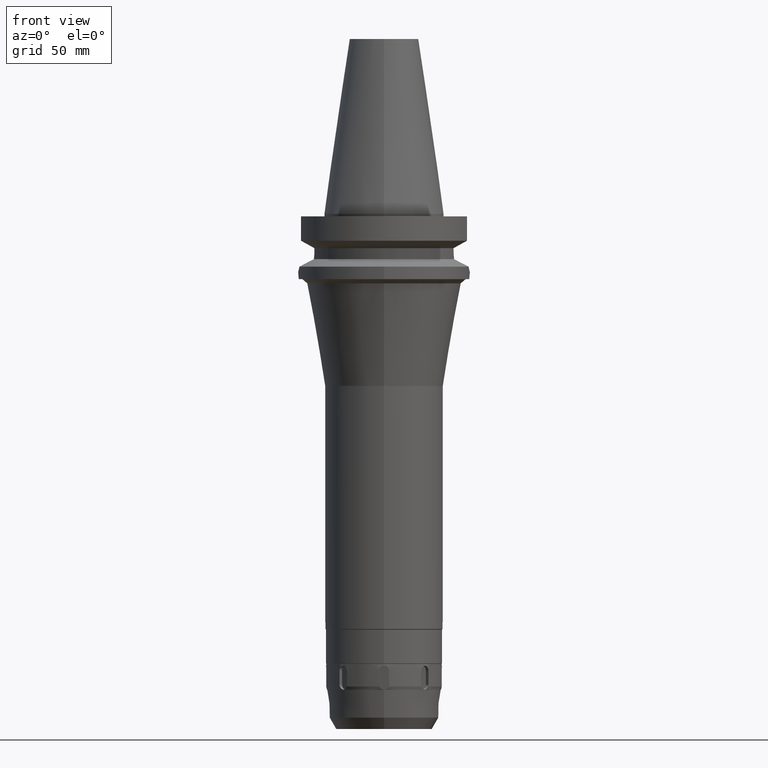
[diagram: clean part render]
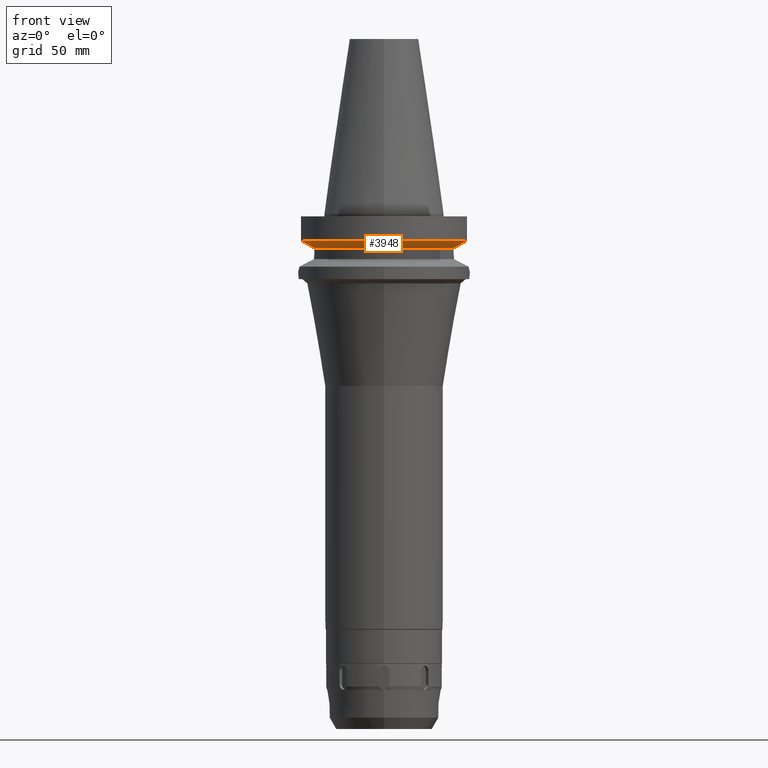
[diagram: same view with one face highlighted and labeled with its STEP entity id]
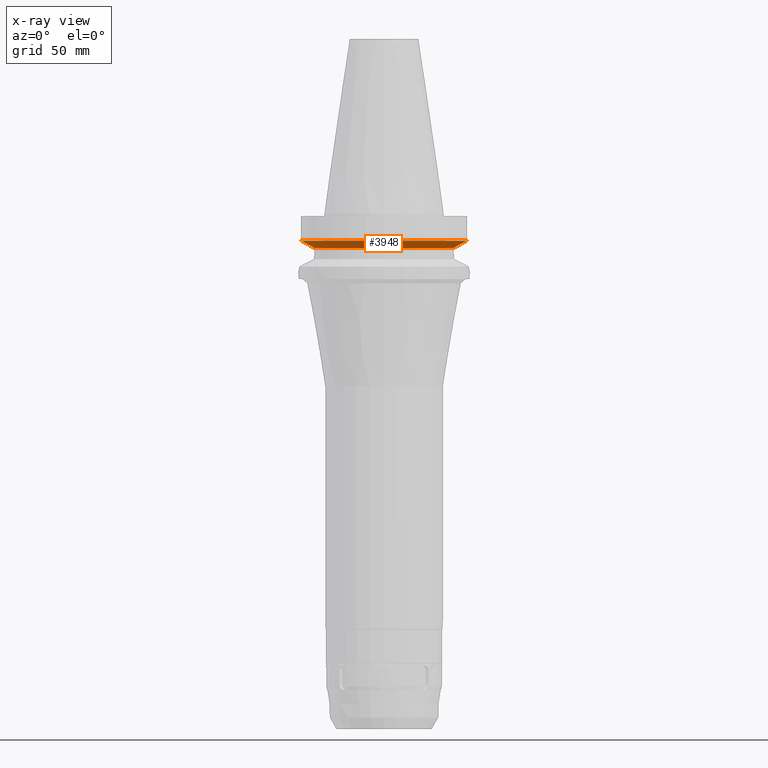
[diagram: x-ray of the same camera — body ghosted, the highlighted face saturated]
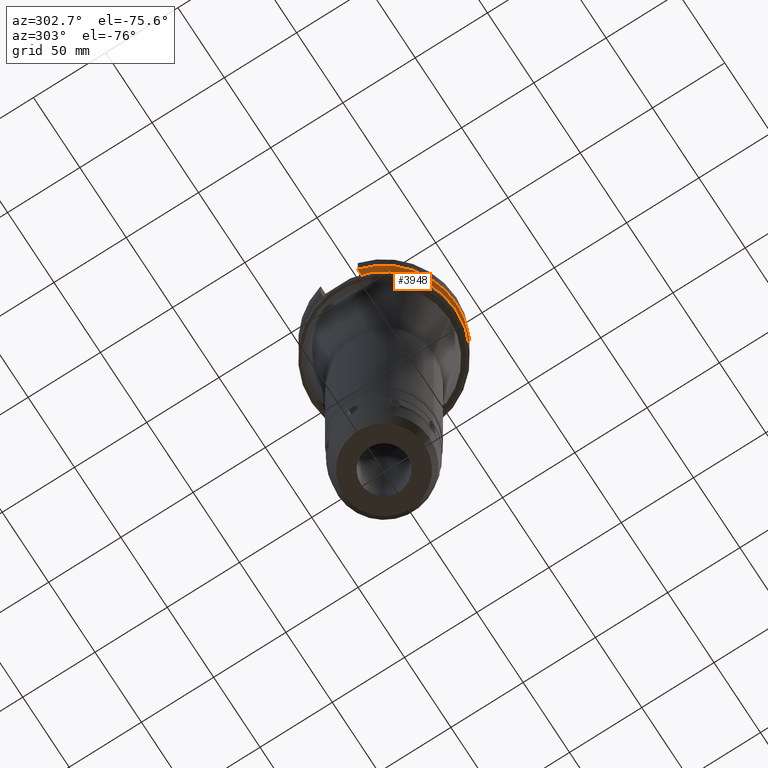
[diagram: same view with one face highlighted and labeled with its STEP entity id]
A machine part, front view. The second image highlights one B-rep face of the part: STEP entity #3948.
The next image is the same camera in x-ray: the body ghosted, the highlighted face saturated — about 0% of this face is hidden behind the body in this view.
A second angle (auxiliary view) of the same face is appended — the face is thin or edge-on in the first view.
In plain terms, the highlighted conical surface has half-angle 60 deg.
Its self-contained STEP definition (entity closure, byte-faithful):
#1785=CARTESIAN_POINT('',(-4.832056912814E1,-1.285000385728E1,
-1.566265768251E1));
#1786=CARTESIAN_POINT('',(-4.745408729221E1,-1.285000385728E1,
-1.614611802317E1));
#1787=CARTESIAN_POINT('',(-4.572065044709E1,-1.284999774293E1,
-1.711204883166E1));
#1788=CARTESIAN_POINT('',(-4.311729623692E1,-1.285000211383E1,
-1.855526471611E1));
#1789=CARTESIAN_POINT('',(-4.138011668042E1,-1.284999657245E1,
-1.951445436177E1));
#1790=CARTESIAN_POINT('',(-4.051083297203E1,-1.284999657245E1,
-1.999284555870E1));
#1829=CARTESIAN_POINT('',(0.E0,1.006319759054E-14,-1.566269223573E1));
#1830=DIRECTION('',(0.E0,0.E0,1.E0));
#1831=DIRECTION('',(-9.664114030784E-1,-2.57E-1,0.E0));
#1832=AXIS2_PLACEMENT_3D('',#1829,#1830,#1831);
#1837=CARTESIAN_POINT('',(0.E0,1.006319759054E-14,-1.566269223573E1));
#1838=DIRECTION('',(0.E0,0.E0,1.E0));
#1839=DIRECTION('',(0.E0,-1.E0,0.E0));
#1840=AXIS2_PLACEMENT_3D('',#1837,#1838,#1839);
#1845=CARTESIAN_POINT('',(0.E0,1.006319759054E-14,-1.999281925465E1));
#1846=DIRECTION('',(0.E0,0.E0,-1.E0));
#1847=DIRECTION('',(9.531960443487E-1,-3.023529411765E-1,0.E0));
#1848=AXIS2_PLACEMENT_3D('',#1845,#1846,#1847);
#1853=CARTESIAN_POINT('',(0.E0,1.006319759054E-14,-1.999281925465E1));
#1854=DIRECTION('',(0.E0,0.E0,-1.E0));
#1855=DIRECTION('',(0.E0,-1.E0,0.E0));
#1856=AXIS2_PLACEMENT_3D('',#1853,#1854,#1855);
#1875=CARTESIAN_POINT('',(4.051083297142E1,-1.284999657438E1,
-1.999284554394E1));
#1876=CARTESIAN_POINT('',(4.138011667043E1,-1.284999657438E1,
-1.951445435220E1));
#1877=CARTESIAN_POINT('',(4.311729628348E1,-1.285000211310E1,
-1.855526479782E1));
#1878=CARTESIAN_POINT('',(4.572065049586E1,-1.284999774259E1,
-1.711204891799E1));
#1879=CARTESIAN_POINT('',(4.745408728436E1,-1.285000385857E1,
-1.614611801585E1));
#1880=CARTESIAN_POINT('',(4.832056912780E1,-1.285000385857E1,
-1.566265767101E1));
#2684=CARTESIAN_POINT('',(-4.051083297203E1,-1.284999657245E1,
-1.999284555870E1));
#2685=VERTEX_POINT('',#2684);
#2686=CARTESIAN_POINT('',(4.051083188482E1,-1.285E1,-1.999281925465E1));
#2687=CARTESIAN_POINT('',(0.E0,-4.25E1,-1.999281925465E1));
#2688=VERTEX_POINT('',#2686);
#2689=VERTEX_POINT('',#2687);
#2700=CARTESIAN_POINT('',(-4.832056912814E1,-1.285000385728E1,
-1.566265768251E1));
#2701=VERTEX_POINT('',#2700);
#2731=CARTESIAN_POINT('',(0.E0,-5.E1,-1.566269223573E1));
#2732=CARTESIAN_POINT('',(4.832057015392E1,-1.285E1,-1.566269223573E1));
#2733=VERTEX_POINT('',#2731);
#2734=VERTEX_POINT('',#2732);
#3932=CARTESIAN_POINT('',(0.E0,1.006319759054E-14,-1.782775574519E1));
#3933=DIRECTION('',(0.E0,0.E0,1.E0));
#3934=DIRECTION('',(0.E0,1.E0,0.E0));
#3935=AXIS2_PLACEMENT_3D('',#3932,#3933,#3934);
#3936=CONICAL_SURFACE('',#3935,4.625E1,6.E1);
#3937=ORIENTED_EDGE('',*,*,#3908,.F.);
#3939=ORIENTED_EDGE('',*,*,#3938,.T.);
#3941=ORIENTED_EDGE('',*,*,#3940,.T.);
#3943=ORIENTED_EDGE('',*,*,#3942,.F.);
#3944=ORIENTED_EDGE('',*,*,#3922,.T.);
#3945=ORIENTED_EDGE('',*,*,#3920,.T.);
#3946=EDGE_LOOP('',(#3937,#3939,#3941,#3943,#3944,#3945));
#3947=FACE_OUTER_BOUND('',#3946,.F.);
#1791=B_SPLINE_CURVE_WITH_KNOTS('',3,(#1785,#1786,#1787,#1788,#1789,#1790),
.UNSPECIFIED.,.F.,.F.,(4,1,1,4),(0.E0,3.333333333333E-1,6.666666666667E-1,1.E0),
.UNSPECIFIED.);
#1833=CIRCLE('',#1832,5.E1);
#1841=CIRCLE('',#1840,5.E1);
#1849=CIRCLE('',#1848,4.25E1);
#1857=CIRCLE('',#1856,4.25E1);
#1881=B_SPLINE_CURVE_WITH_KNOTS('',3,(#1875,#1876,#1877,#1878,#1879,#1880),
.UNSPECIFIED.,.F.,.F.,(4,1,1,4),(0.E0,3.333333333333E-1,6.666666666667E-1,1.E0),
.UNSPECIFIED.);
#3908=EDGE_CURVE('',#2701,#2685,#1791,.T.);
#3920=EDGE_CURVE('',#2689,#2685,#1857,.T.);
#3922=EDGE_CURVE('',#2688,#2689,#1849,.T.);
#3938=EDGE_CURVE('',#2701,#2733,#1833,.T.);
#3940=EDGE_CURVE('',#2733,#2734,#1841,.T.);
#3942=EDGE_CURVE('',#2688,#2734,#1881,.T.);
#3948=ADVANCED_FACE('',(#3947),#3936,.T.);